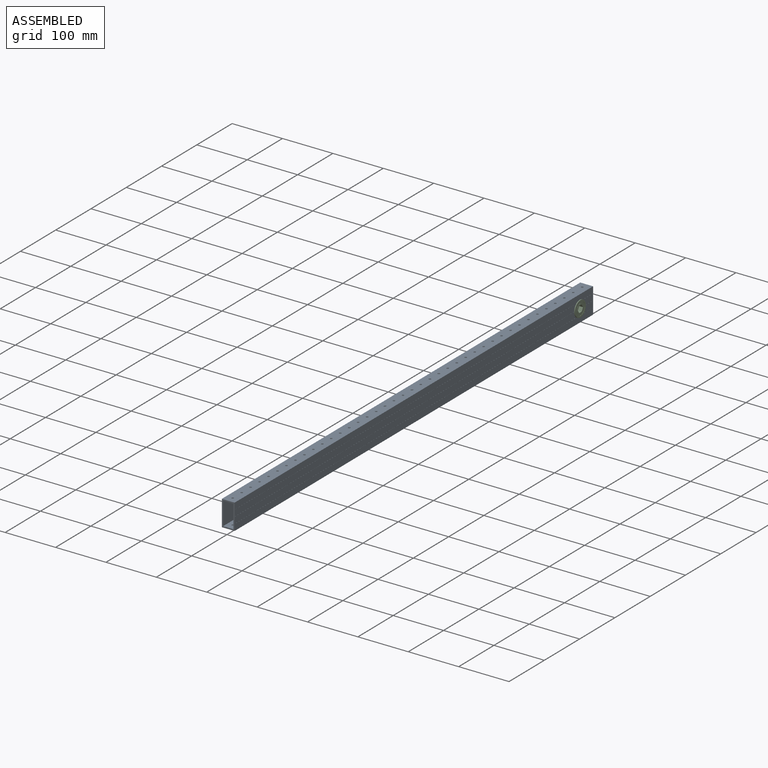
[diagram: assembled view]
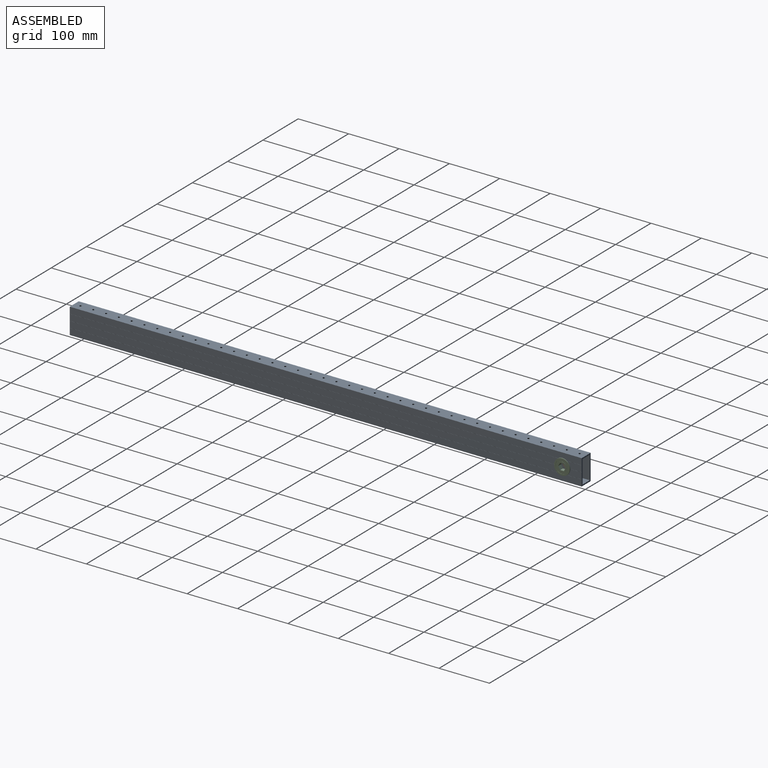
[diagram: assembled view, second angle]
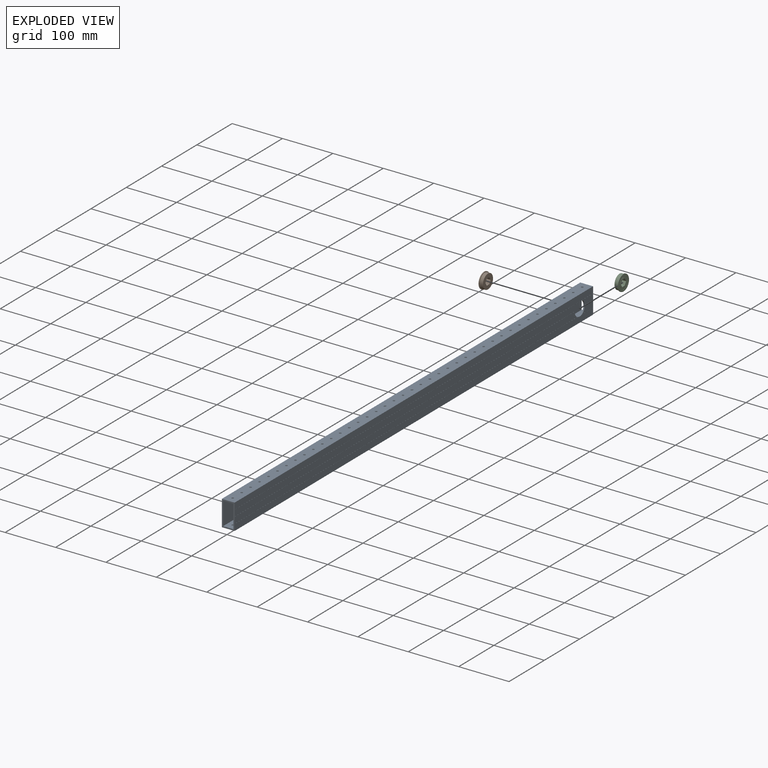
[diagram: exploded view]
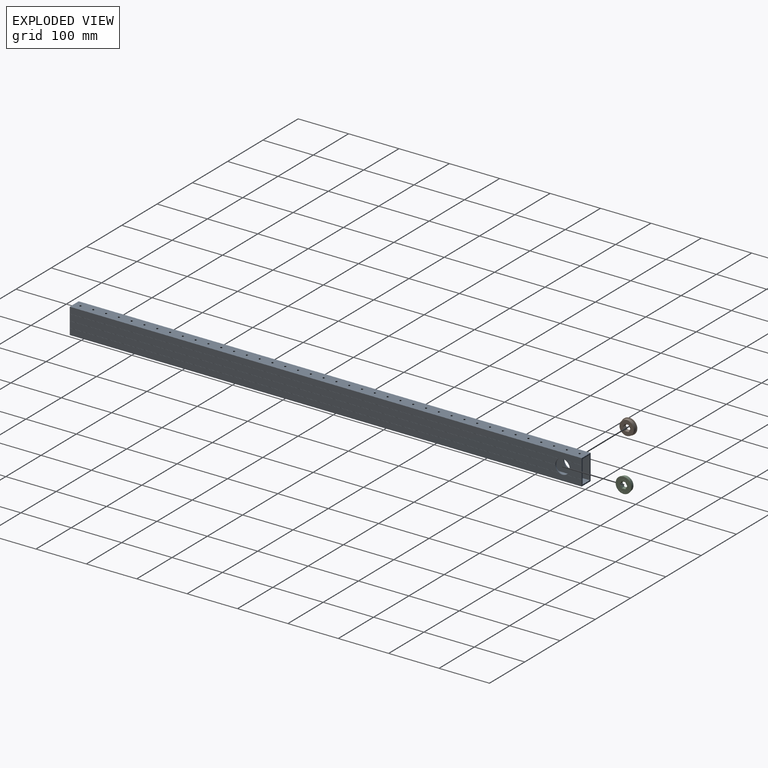
[diagram: exploded view, second angle]
ASSEMBLY  parts=3 mates=2
PART A: 292 faces, bbox 25.4x1016x50.8 mm
  f0: plane 971.21x12.55mm, normal (-1,0,0), area 12118.6mm2, adj f13,f15,f289,f291
  f1: plane 971.21x12.55mm, normal (-1,0,0), area 12118.6mm2, adj f14,f30,f289,f291
  f2: plane 1016x12.62mm, normal (-1,0,0), area 12812.8mm2, adj f20,f31,f40,f125,f289,f291
  f3: plane 971.21x12.55mm, normal (1,0,0), area 12118.6mm2, adj f9,f11,f290,f291
  f4: plane 971.21x12.55mm, normal (1,0,0), area 12118.6mm2, adj f10,f12,f290,f291
  f5: plane 1016x12.62mm, normal (1,0,0), area 12812.8mm2, adj f8,f19,f125,f206,f290,f291
  f6: plane 1016x12.62mm, normal (1,0,0), area 12812.8mm2, adj f17,f27,f36,f125,f290,f291
  f7: plane 1016x12.62mm, normal (-1,0,0), area 12812.8mm2, adj f16,f18,f125,f288,f289,f291
  f8: plane 971.51x0.08mm, normal (0.71,0,-0.71), area 104.7mm2, adj f5,f9,f290,f291
  f9: plane 971.35x0.08mm, normal (0.71,0,0.71), area 104.7mm2, adj f3,f8,f290,f291
  f10: plane 971.35x0.08mm, normal (0.71,0,-0.71), area 104.7mm2, adj f4,f27,f290,f291
  f11: plane 963.61x0.08mm, normal (0.71,0,-0.71), area 103.8mm2, adj f3,f12,f290,f291
  f12: plane 963.61x0.08mm, normal (0.71,0,0.71), area 103.8mm2, adj f4,f11,f290,f291
  f13: plane 963.61x0.08mm, normal (-0.71,0,-0.71), area 103.8mm2, adj f0,f30,f289,f291
  f14: plane 971.35x0.08mm, normal (-0.71,0,-0.71), area 104.7mm2, adj f1,f31,f289,f291
  f15: plane 971.35x0.08mm, normal (-0.71,0,0.71), area 104.7mm2, adj f0,f16,f289,f291
  f16: plane 971.51x0.08mm, normal (-0.71,0,-0.71), area 104.7mm2, adj f7,f15,f289,f291
  f17: plane 1016x12.62mm, normal (0,0,-1), area 12569.1mm2, adj f6,f29,f43,f44,f45,f46,f47,f48
  f18: plane 1016x12.62mm, normal (0,0,1), area 12569.1mm2, adj f7,f26,f82,f83,f84,f85,f86,f87
  f19: plane 1016x12.62mm, normal (0,0,1), area 12569.1mm2, adj f5,f25,f82,f83,f84,f85,f86,f87
  f20: plane 1016x12.62mm, normal (0,0,-1), area 12569.1mm2, adj f2,f28,f43,f44,f45,f46,f47,f48
  f21: plane 1016x45.72mm, normal (-1,0,0), area 45810.2mm2, adj f22,f24,f125,f290,f291
  f22: plane 1016x20.32mm, normal (0,0,-1), area 20106.6mm2, adj f21,f23,f82,f83,f84,f85,f86,f87
  f23: plane 1016x45.72mm, normal (1,0,0), area 45810.2mm2, adj f22,f24,f125,f289,f291
  f24: plane 1016x20.32mm, normal (0,0,1), area 20106.6mm2, adj f21,f23,f43,f44,f45,f46,f47,f48
  f25: plane 10.63x0.08mm, normal (-0.71,0,0.71), area 1.1mm2, adj f19,f26,f82,f291
  f26: plane 10.63x0.08mm, normal (0.71,0,0.71), area 1.1mm2, adj f18,f25,f82,f291
  f27: plane 971.51x0.08mm, normal (0.71,0,0.71), area 104.7mm2, adj f6,f10,f290,f291
  f28: plane 10.63x0.08mm, normal (0.71,0,-0.71), area 1.1mm2, adj f20,f29,f43,f291
  f29: plane 10.63x0.08mm, normal (-0.71,0,-0.71), area 1.1mm2, adj f17,f28,f43,f291
  f30: plane 963.61x0.08mm, normal (-0.71,0,0.71), area 103.8mm2, adj f1,f13,f289,f291
  f31: plane 971.51x0.08mm, normal (-0.71,0,0.71), area 104.7mm2, adj f2,f14,f289,f291
  f32: plane 31.41x12.55mm, normal (1,0,0), area 326.3mm2, adj f34,f37,f125,f290
  f33: plane 31.41x12.55mm, normal (1,0,0), area 326.3mm2, adj f35,f38,f125,f290
  f34: plane 31.55x0.08mm, normal (0.71,0,0.71), area 3.4mm2, adj f32,f125,f206,f290
  f35: plane 31.55x0.08mm, normal (0.71,0,-0.71), area 3.4mm2, adj f33,f36,f125,f290
  f36: plane 31.71x0.08mm, normal (0.71,0,0.71), area 3.4mm2, adj f6,f35,f125,f290
  f37: plane 23.81x0.08mm, normal (0.71,0,-0.71), area 2.6mm2, adj f32,f38,f125,f290
  f38: plane 23.81x0.08mm, normal (0.71,0,0.71), area 2.6mm2, adj f33,f37,f125,f290
  f39: plane 23.81x0.08mm, normal (-0.71,0,0.71), area 2.6mm2, adj f124,f125,f287,f289
  f40: plane 31.71x0.08mm, normal (-0.71,0,0.71), area 3.4mm2, adj f2,f41,f125,f289
  f41: plane 31.55x0.08mm, normal (-0.71,0,-0.71), area 3.4mm2, adj f40,f124,f125,f289
  f42: plane 31.55x0.08mm, normal (-0.71,0,0.71), area 3.4mm2, adj f123,f125,f288,f289
  f43: cylinder r=2.07mm len=4.14mm, axis (0,0,1), area 33mm2, adj f17,f20,f24,f28,f29,f207,f208
  f44: cylinder r=2.07mm len=4.14mm, axis (0,0,1), area 33mm2, adj f17,f20,f24,f207,f208,f209,f210
  f45: cylinder r=2.07mm len=4.14mm, axis (0,0,1), area 33mm2, adj f17,f20,f24,f209,f210,f211,f212
  f46: cylinder r=2.07mm len=4.14mm, axis (0,0,1), area 33mm2, adj f17,f20,f24,f211,f212,f213,f214
  f47: cylinder r=2.07mm len=4.14mm, axis (0,0,1), area 33mm2, adj f17,f20,f24,f213,f214,f215,f216
  f48: cylinder r=2.07mm len=4.14mm, axis (0,0,1), area 33mm2, adj f17,f20,f24,f215,f216,f217,f218
  f49: cylinder r=2.07mm len=4.14mm, axis (0,0,1), area 33mm2, adj f17,f20,f24,f217,f218,f219,f220
  f50: cylinder r=2.07mm len=4.14mm, axis (0,0,1), area 33mm2, adj f17,f20,f24,f219,f220,f221,f222
  f51: cylinder r=2.07mm len=4.14mm, axis (0,0,1), area 33mm2, adj f17,f20,f24,f221,f222,f223,f224
  f52: cylinder r=2.07mm len=4.14mm, axis (0,0,1), area 33mm2, adj f17,f20,f24,f223,f224,f225,f226
  f53: cylinder r=2.07mm len=4.14mm, axis (0,0,1), area 33mm2, adj f17,f20,f24,f225,f226,f227,f228
  f54: cylinder r=2.07mm len=4.14mm, axis (0,0,1), area 33mm2, adj f17,f20,f24,f227,f228,f229,f230
  f55: cylinder r=2.07mm len=4.14mm, axis (0,0,1), area 33mm2, adj f17,f20,f24,f229,f230,f231,f232
  f56: cylinder r=2.07mm len=4.14mm, axis (0,0,1), area 33mm2, adj f17,f20,f24,f231,f232,f233,f234
  f57: cylinder r=2.07mm len=4.14mm, axis (0,0,1), area 33mm2, adj f17,f20,f24,f233,f234,f235,f236
  f58: cylinder r=2.07mm len=4.14mm, axis (0,0,1), area 33mm2, adj f17,f20,f24,f235,f236,f237,f238
  f59: cylinder r=2.07mm len=4.14mm, axis (0,0,1), area 33mm2, adj f17,f20,f24,f237,f238,f239,f240
  f60: cylinder r=2.07mm len=4.14mm, axis (0,0,1), area 33mm2, adj f17,f20,f24,f239,f240,f241,f242
  f61: cylinder r=2.07mm len=4.14mm, axis (0,0,1), area 33mm2, adj f17,f20,f24,f241,f242,f243,f244
  f62: cylinder r=2.07mm len=4.14mm, axis (0,0,1), area 33mm2, adj f17,f20,f24,f243,f244,f245,f246
  f63: cylinder r=2.07mm len=4.14mm, axis (0,0,1), area 33mm2, adj f17,f20,f24,f245,f246,f247,f248
  f64: cylinder r=2.07mm len=4.14mm, axis (0,0,1), area 33mm2, adj f17,f20,f24,f247,f248,f249,f250
  f65: cylinder r=2.07mm len=4.14mm, axis (0,0,1), area 33mm2, adj f17,f20,f24,f249,f250,f251,f252
  f66: cylinder r=2.07mm len=4.14mm, axis (0,0,1), area 33mm2, adj f17,f20,f24,f251,f252,f253,f254
  f67: cylinder r=2.07mm len=4.14mm, axis (0,0,1), area 33mm2, adj f17,f20,f24,f253,f254,f255,f256
  f68: cylinder r=2.07mm len=4.14mm, axis (0,0,1), area 33mm2, adj f17,f20,f24,f255,f256,f257,f258
  f69: cylinder r=2.07mm len=4.14mm, axis (0,0,1), area 33mm2, adj f17,f20,f24,f257,f258,f259,f260
  f70: cylinder r=2.07mm len=4.14mm, axis (0,0,1), area 33mm2, adj f17,f20,f24,f259,f260,f261,f262
  f71: cylinder r=2.07mm len=4.14mm, axis (0,0,1), area 33mm2, adj f17,f20,f24,f261,f262,f263,f264
  f72: cylinder r=2.07mm len=4.14mm, axis (0,0,1), area 33mm2, adj f17,f20,f24,f263,f264,f265,f266
  f73: cylinder r=2.07mm len=4.14mm, axis (0,0,1), area 33mm2, adj f17,f20,f24,f265,f266,f267,f268
  f74: cylinder r=2.07mm len=4.14mm, axis (0,0,1), area 33mm2, adj f17,f20,f24,f267,f268,f269,f270
  f75: cylinder r=2.07mm len=4.14mm, axis (0,0,1), area 33mm2, adj f17,f20,f24,f269,f270,f271,f272
  f76: cylinder r=2.07mm len=4.14mm, axis (0,0,1), area 33mm2, adj f17,f20,f24,f271,f272,f273,f274
  f77: cylinder r=2.07mm len=4.14mm, axis (0,0,1), area 33mm2, adj f17,f20,f24,f273,f274,f275,f276
  f78: cylinder r=2.07mm len=4.14mm, axis (0,0,1), area 33mm2, adj f17,f20,f24,f275,f276,f277,f278
  f79: cylinder r=2.07mm len=4.14mm, axis (0,0,1), area 33mm2, adj f17,f20,f24,f277,f278,f279,f280
  f80: cylinder r=2.07mm len=4.14mm, axis (0,0,1), area 33mm2, adj f17,f20,f24,f279,f280,f281,f282
  f81: cylinder r=2.07mm len=4.14mm, axis (0,0,1), area 33mm2, adj f17,f20,f24,f281,f282,f283,f284
  f82: cylinder r=2.07mm len=4.14mm, axis (0,0,1), area 33mm2, adj f18,f19,f22,f25,f26,f126,f127
  f83: cylinder r=2.07mm len=4.14mm, axis (0,0,1), area 33mm2, adj f18,f19,f22,f126,f127,f128,f129
  f84: cylinder r=2.07mm len=4.14mm, axis (0,0,1), area 33mm2, adj f18,f19,f22,f128,f129,f130,f131
  f85: cylinder r=2.07mm len=4.14mm, axis (0,0,1), area 33mm2, adj f18,f19,f22,f130,f131,f132,f133
  f86: cylinder r=2.07mm len=4.14mm, axis (0,0,1), area 33mm2, adj f18,f19,f22,f132,f133,f134,f135
  f87: cylinder r=2.07mm len=4.14mm, axis (0,0,1), area 33mm2, adj f18,f19,f22,f134,f135,f136,f137
  f88: cylinder r=2.07mm len=4.14mm, axis (0,0,1), area 33mm2, adj f18,f19,f22,f136,f137,f138,f139
  f89: cylinder r=2.07mm len=4.14mm, axis (0,0,1), area 33mm2, adj f18,f19,f22,f138,f139,f140,f141
  f90: cylinder r=2.07mm len=4.14mm, axis (0,0,1), area 33mm2, adj f18,f19,f22,f140,f141,f142,f143
  f91: cylinder r=2.07mm len=4.14mm, axis (0,0,1), area 33mm2, adj f18,f19,f22,f142,f143,f144,f145
  f92: cylinder r=2.07mm len=4.14mm, axis (0,0,1), area 33mm2, adj f18,f19,f22,f144,f145,f146,f147
  f93: cylinder r=2.07mm len=4.14mm, axis (0,0,1), area 33mm2, adj f18,f19,f22,f146,f147,f148,f149
  f94: cylinder r=2.07mm len=4.14mm, axis (0,0,1), area 33mm2, adj f18,f19,f22,f148,f149,f150,f151
  f95: cylinder r=2.07mm len=4.14mm, axis (0,0,1), area 33mm2, adj f18,f19,f22,f150,f151,f152,f153
  f96: cylinder r=2.07mm len=4.14mm, axis (0,0,1), area 33mm2, adj f18,f19,f22,f152,f153,f154,f155
  f97: cylinder r=2.07mm len=4.14mm, axis (0,0,1), area 33mm2, adj f18,f19,f22,f154,f155,f156,f157
  f98: cylinder r=2.07mm len=4.14mm, axis (0,0,1), area 33mm2, adj f18,f19,f22,f156,f157,f158,f159
  f99: cylinder r=2.07mm len=4.14mm, axis (0,0,1), area 33mm2, adj f18,f19,f22,f158,f159,f160,f161
  f100: cylinder r=2.07mm len=4.14mm, axis (0,0,1), area 33mm2, adj f18,f19,f22,f160,f161,f162,f163
  f101: cylinder r=2.07mm len=4.14mm, axis (0,0,1), area 33mm2, adj f18,f19,f22,f162,f163,f164,f165
  f102: cylinder r=2.07mm len=4.14mm, axis (0,0,1), area 33mm2, adj f18,f19,f22,f164,f165,f166,f167
  f103: cylinder r=2.07mm len=4.14mm, axis (0,0,1), area 33mm2, adj f18,f19,f22,f166,f167,f168,f169
  f104: cylinder r=2.07mm len=4.14mm, axis (0,0,1), area 33mm2, adj f18,f19,f22,f168,f169,f170,f171
  f105: cylinder r=2.07mm len=4.14mm, axis (0,0,1), area 33mm2, adj f18,f19,f22,f170,f171,f172,f173
  f106: cylinder r=2.07mm len=4.14mm, axis (0,0,1), area 33mm2, adj f18,f19,f22,f172,f173,f174,f175
  f107: cylinder r=2.07mm len=4.14mm, axis (0,0,1), area 33mm2, adj f18,f19,f22,f174,f175,f176,f177
  f108: cylinder r=2.07mm len=4.14mm, axis (0,0,1), area 33mm2, adj f18,f19,f22,f176,f177,f178,f179
  f109: cylinder r=2.07mm len=4.14mm, axis (0,0,1), area 33mm2, adj f18,f19,f22,f178,f179,f180,f181
  f110: cylinder r=2.07mm len=4.14mm, axis (0,0,1), area 33mm2, adj f18,f19,f22,f180,f181,f182,f183
  f111: cylinder r=2.07mm len=4.14mm, axis (0,0,1), area 33mm2, adj f18,f19,f22,f182,f183,f184,f185
  f112: cylinder r=2.07mm len=4.14mm, axis (0,0,1), area 33mm2, adj f18,f19,f22,f184,f185,f186,f187
  f113: cylinder r=2.07mm len=4.14mm, axis (0,0,1), area 33mm2, adj f18,f19,f22,f186,f187,f188,f189
  f114: cylinder r=2.07mm len=4.14mm, axis (0,0,1), area 33mm2, adj f18,f19,f22,f188,f189,f190,f191
  f115: cylinder r=2.07mm len=4.14mm, axis (0,0,1), area 33mm2, adj f18,f19,f22,f190,f191,f192,f193
  f116: cylinder r=2.07mm len=4.14mm, axis (0,0,1), area 33mm2, adj f18,f19,f22,f192,f193,f194,f195
  f117: cylinder r=2.07mm len=4.14mm, axis (0,0,1), area 33mm2, adj f18,f19,f22,f194,f195,f196,f197
  f118: cylinder r=2.07mm len=4.14mm, axis (0,0,1), area 33mm2, adj f18,f19,f22,f196,f197,f198,f199
  f119: cylinder r=2.07mm len=4.14mm, axis (0,0,1), area 33mm2, adj f18,f19,f22,f198,f199,f200,f201
  f120: cylinder r=2.07mm len=4.14mm, axis (0,0,1), area 33mm2, adj f18,f19,f22,f200,f201,f202,f203
  f121: cylinder r=2.07mm len=4.14mm, axis (0,0,1), area 33mm2, adj f18,f19,f22,f202,f203,f204,f205
  f122: cylinder r=2.07mm len=4.14mm, axis (0,0,1), area 33mm2, adj f17,f20,f24,f283,f284,f285,f286
  f123: plane 31.41x12.55mm, normal (-1,0,0), area 326.3mm2, adj f42,f125,f287,f289
  f124: plane 31.41x12.55mm, normal (-1,0,0), area 326.3mm2, adj f39,f41,f125,f289
  f125: plane 50.8x25.4mm, normal (0,1,0), area 361.2mm2, adj f2,f5,f6,f7,f17,f18,f19,f20
  f126: plane 21.26x0.08mm, normal (-0.71,0,0.71), area 2.3mm2, adj f19,f82,f83,f127
  f127: plane 21.26x0.08mm, normal (0.71,0,0.71), area 2.3mm2, adj f18,f82,f83,f126
  f128: plane 21.26x0.08mm, normal (-0.71,0,0.71), area 2.3mm2, adj f19,f83,f84,f129
  f129: plane 21.26x0.08mm, normal (0.71,0,0.71), area 2.3mm2, adj f18,f83,f84,f128
  f130: plane 21.26x0.08mm, normal (-0.71,0,0.71), area 2.3mm2, adj f19,f84,f85,f131
  f131: plane 21.26x0.08mm, normal (0.71,0,0.71), area 2.3mm2, adj f18,f84,f85,f130
  f132: plane 21.26x0.08mm, normal (-0.71,0,0.71), area 2.3mm2, adj f19,f85,f86,f133
  f133: plane 21.26x0.08mm, normal (0.71,0,0.71), area 2.3mm2, adj f18,f85,f86,f132
  f134: plane 21.26x0.08mm, normal (-0.71,0,0.71), area 2.3mm2, adj f19,f86,f87,f135
  f135: plane 21.26x0.08mm, normal (0.71,0,0.71), area 2.3mm2, adj f18,f86,f87,f134
  f136: plane 21.26x0.08mm, normal (-0.71,0,0.71), area 2.3mm2, adj f19,f87,f88,f137
  f137: plane 21.26x0.08mm, normal (0.71,0,0.71), area 2.3mm2, adj f18,f87,f88,f136
  f138: plane 21.26x0.08mm, normal (-0.71,0,0.71), area 2.3mm2, adj f19,f88,f89,f139
  f139: plane 21.26x0.08mm, normal (0.71,0,0.71), area 2.3mm2, adj f18,f88,f89,f138
  f140: plane 21.26x0.08mm, normal (-0.71,0,0.71), area 2.3mm2, adj f19,f89,f90,f141
  f141: plane 21.26x0.08mm, normal (0.71,0,0.71), area 2.3mm2, adj f18,f89,f90,f140
  f142: plane 21.26x0.08mm, normal (-0.71,0,0.71), area 2.3mm2, adj f19,f90,f91,f143
  f143: plane 21.26x0.08mm, normal (0.71,0,0.71), area 2.3mm2, adj f18,f90,f91,f142
  f144: plane 21.26x0.08mm, normal (-0.71,0,0.71), area 2.3mm2, adj f19,f91,f92,f145
  f145: plane 21.26x0.08mm, normal (0.71,0,0.71), area 2.3mm2, adj f18,f91,f92,f144
  f146: plane 21.26x0.08mm, normal (-0.71,0,0.71), area 2.3mm2, adj f19,f92,f93,f147
  f147: plane 21.26x0.08mm, normal (0.71,0,0.71), area 2.3mm2, adj f18,f92,f93,f146
  f148: plane 21.26x0.08mm, normal (-0.71,0,0.71), area 2.3mm2, adj f19,f93,f94,f149
  f149: plane 21.26x0.08mm, normal (0.71,0,0.71), area 2.3mm2, adj f18,f93,f94,f148
  f150: plane 21.26x0.08mm, normal (-0.71,0,0.71), area 2.3mm2, adj f19,f94,f95,f151
  f151: plane 21.26x0.08mm, normal (0.71,0,0.71), area 2.3mm2, adj f18,f94,f95,f150
  f152: plane 21.26x0.08mm, normal (-0.71,0,0.71), area 2.3mm2, adj f19,f95,f96,f153
  f153: plane 21.26x0.08mm, normal (0.71,0,0.71), area 2.3mm2, adj f18,f95,f96,f152
  f154: plane 21.26x0.08mm, normal (-0.71,0,0.71), area 2.3mm2, adj f19,f96,f97,f155
  f155: plane 21.26x0.08mm, normal (0.71,0,0.71), area 2.3mm2, adj f18,f96,f97,f154
  f156: plane 21.26x0.08mm, normal (-0.71,0,0.71), area 2.3mm2, adj f19,f97,f98,f157
  f157: plane 21.26x0.08mm, normal (0.71,0,0.71), area 2.3mm2, adj f18,f97,f98,f156
  f158: plane 21.26x0.08mm, normal (-0.71,0,0.71), area 2.3mm2, adj f19,f98,f99,f159
  f159: plane 21.26x0.08mm, normal (0.71,0,0.71), area 2.3mm2, adj f18,f98,f99,f158
  f160: plane 21.26x0.08mm, normal (-0.71,0,0.71), area 2.3mm2, adj f19,f99,f100,f161
  f161: plane 21.26x0.08mm, normal (0.71,0,0.71), area 2.3mm2, adj f18,f99,f100,f160
  f162: plane 21.26x0.08mm, normal (-0.71,0,0.71), area 2.3mm2, adj f19,f100,f101,f163
  f163: plane 21.26x0.08mm, normal (0.71,0,0.71), area 2.3mm2, adj f18,f100,f101,f162
  f164: plane 21.26x0.08mm, normal (-0.71,0,0.71), area 2.3mm2, adj f19,f101,f102,f165
  f165: plane 21.26x0.08mm, normal (0.71,0,0.71), area 2.3mm2, adj f18,f101,f102,f164
  f166: plane 21.26x0.08mm, normal (-0.71,0,0.71), area 2.3mm2, adj f19,f102,f103,f167
  f167: plane 21.26x0.08mm, normal (0.71,0,0.71), area 2.3mm2, adj f18,f102,f103,f166
  f168: plane 21.26x0.08mm, normal (-0.71,0,0.71), area 2.3mm2, adj f19,f103,f104,f169
  f169: plane 21.26x0.08mm, normal (0.71,0,0.71), area 2.3mm2, adj f18,f103,f104,f168
  f170: plane 21.26x0.08mm, normal (-0.71,0,0.71), area 2.3mm2, adj f19,f104,f105,f171
  f171: plane 21.26x0.08mm, normal (0.71,0,0.71), area 2.3mm2, adj f18,f104,f105,f170
  f172: plane 21.26x0.08mm, normal (-0.71,0,0.71), area 2.3mm2, adj f19,f105,f106,f173
  f173: plane 21.26x0.08mm, normal (0.71,0,0.71), area 2.3mm2, adj f18,f105,f106,f172
  f174: plane 21.26x0.08mm, normal (-0.71,0,0.71), area 2.3mm2, adj f19,f106,f107,f175
  f175: plane 21.26x0.08mm, normal (0.71,0,0.71), area 2.3mm2, adj f18,f106,f107,f174
  f176: plane 21.26x0.08mm, normal (-0.71,0,0.71), area 2.3mm2, adj f19,f107,f108,f177
  f177: plane 21.26x0.08mm, normal (0.71,0,0.71), area 2.3mm2, adj f18,f107,f108,f176
  f178: plane 21.26x0.08mm, normal (-0.71,0,0.71), area 2.3mm2, adj f19,f108,f109,f179
  f179: plane 21.26x0.08mm, normal (0.71,0,0.71), area 2.3mm2, adj f18,f108,f109,f178
  f180: plane 21.26x0.08mm, normal (-0.71,0,0.71), area 2.3mm2, adj f19,f109,f110,f181
  f181: plane 21.26x0.08mm, normal (0.71,0,0.71), area 2.3mm2, adj f18,f109,f110,f180
  f182: plane 21.26x0.08mm, normal (-0.71,0,0.71), area 2.3mm2, adj f19,f110,f111,f183
  f183: plane 21.26x0.08mm, normal (0.71,0,0.71), area 2.3mm2, adj f18,f110,f111,f182
  f184: plane 21.26x0.08mm, normal (-0.71,0,0.71), area 2.3mm2, adj f19,f111,f112,f185
  f185: plane 21.26x0.08mm, normal (0.71,0,0.71), area 2.3mm2, adj f18,f111,f112,f184
  f186: plane 21.26x0.08mm, normal (-0.71,0,0.71), area 2.3mm2, adj f19,f112,f113,f187
  f187: plane 21.26x0.08mm, normal (0.71,0,0.71), area 2.3mm2, adj f18,f112,f113,f186
  f188: plane 21.26x0.08mm, normal (-0.71,0,0.71), area 2.3mm2, adj f19,f113,f114,f189
  f189: plane 21.26x0.08mm, normal (0.71,0,0.71), area 2.3mm2, adj f18,f113,f114,f188
  f190: plane 21.26x0.08mm, normal (-0.71,0,0.71), area 2.3mm2, adj f19,f114,f115,f191
  f191: plane 21.26x0.08mm, normal (0.71,0,0.71), area 2.3mm2, adj f18,f114,f115,f190
  f192: plane 21.26x0.08mm, normal (-0.71,0,0.71), area 2.3mm2, adj f19,f115,f116,f193
  f193: plane 21.26x0.08mm, normal (0.71,0,0.71), area 2.3mm2, adj f18,f115,f116,f192
  f194: plane 21.26x0.08mm, normal (-0.71,0,0.71), area 2.3mm2, adj f19,f116,f117,f195
  f195: plane 21.26x0.08mm, normal (0.71,0,0.71), area 2.3mm2, adj f18,f116,f117,f194
  f196: plane 21.26x0.08mm, normal (-0.71,0,0.71), area 2.3mm2, adj f19,f117,f118,f197
  f197: plane 21.26x0.08mm, normal (0.71,0,0.71), area 2.3mm2, adj f18,f117,f118,f196
  f198: plane 21.26x0.08mm, normal (-0.71,0,0.71), area 2.3mm2, adj f19,f118,f119,f199
  f199: plane 21.26x0.08mm, normal (0.71,0,0.71), area 2.3mm2, adj f18,f118,f119,f198
  f200: plane 21.26x0.08mm, normal (-0.71,0,0.71), area 2.3mm2, adj f19,f119,f120,f201
  f201: plane 21.26x0.08mm, normal (0.71,0,0.71), area 2.3mm2, adj f18,f119,f120,f200
  f202: plane 21.26x0.08mm, normal (-0.71,0,0.71), area 2.3mm2, adj f19,f120,f121,f203
  f203: plane 21.26x0.08mm, normal (0.71,0,0.71), area 2.3mm2, adj f18,f120,f121,f202
  f204: plane 10.63x0.08mm, normal (0.71,0,0.71), area 1.1mm2, adj f18,f121,f125,f205
  f205: plane 10.63x0.08mm, normal (-0.71,0,0.71), area 1.1mm2, adj f19,f121,f125,f204
  f206: plane 31.71x0.08mm, normal (0.71,0,-0.71), area 3.4mm2, adj f5,f34,f125,f290
  f207: plane 21.26x0.08mm, normal (0.71,0,-0.71), area 2.3mm2, adj f20,f43,f44,f208
  f208: plane 21.26x0.08mm, normal (-0.71,0,-0.71), area 2.3mm2, adj f17,f43,f44,f207
  f209: plane 21.26x0.08mm, normal (0.71,0,-0.71), area 2.3mm2, adj f20,f44,f45,f210
  f210: plane 21.26x0.08mm, normal (-0.71,0,-0.71), area 2.3mm2, adj f17,f44,f45,f209
  f211: plane 21.26x0.08mm, normal (0.71,0,-0.71), area 2.3mm2, adj f20,f45,f46,f212
  f212: plane 21.26x0.08mm, normal (-0.71,0,-0.71), area 2.3mm2, adj f17,f45,f46,f211
  f213: plane 21.26x0.08mm, normal (0.71,0,-0.71), area 2.3mm2, adj f20,f46,f47,f214
  f214: plane 21.26x0.08mm, normal (-0.71,0,-0.71), area 2.3mm2, adj f17,f46,f47,f213
  f215: plane 21.26x0.08mm, normal (0.71,0,-0.71), area 2.3mm2, adj f20,f47,f48,f216
  f216: plane 21.26x0.08mm, normal (-0.71,0,-0.71), area 2.3mm2, adj f17,f47,f48,f215
  f217: plane 21.26x0.08mm, normal (0.71,0,-0.71), area 2.3mm2, adj f20,f48,f49,f218
  f218: plane 21.26x0.08mm, normal (-0.71,0,-0.71), area 2.3mm2, adj f17,f48,f49,f217
  f219: plane 21.26x0.08mm, normal (0.71,0,-0.71), area 2.3mm2, adj f20,f49,f50,f220
  f220: plane 21.26x0.08mm, normal (-0.71,0,-0.71), area 2.3mm2, adj f17,f49,f50,f219
  f221: plane 21.26x0.08mm, normal (0.71,0,-0.71), area 2.3mm2, adj f20,f50,f51,f222
  f222: plane 21.26x0.08mm, normal (-0.71,0,-0.71), area 2.3mm2, adj f17,f50,f51,f221
  f223: plane 21.26x0.08mm, normal (0.71,0,-0.71), area 2.3mm2, adj f20,f51,f52,f224
  f224: plane 21.26x0.08mm, normal (-0.71,0,-0.71), area 2.3mm2, adj f17,f51,f52,f223
  f225: plane 21.26x0.08mm, normal (0.71,0,-0.71), area 2.3mm2, adj f20,f52,f53,f226
  f226: plane 21.26x0.08mm, normal (-0.71,0,-0.71), area 2.3mm2, adj f17,f52,f53,f225
  f227: plane 21.26x0.08mm, normal (0.71,0,-0.71), area 2.3mm2, adj f20,f53,f54,f228
  f228: plane 21.26x0.08mm, normal (-0.71,0,-0.71), area 2.3mm2, adj f17,f53,f54,f227
  f229: plane 21.26x0.08mm, normal (0.71,0,-0.71), area 2.3mm2, adj f20,f54,f55,f230
  f230: plane 21.26x0.08mm, normal (-0.71,0,-0.71), area 2.3mm2, adj f17,f54,f55,f229
  f231: plane 21.26x0.08mm, normal (0.71,0,-0.71), area 2.3mm2, adj f20,f55,f56,f232
  f232: plane 21.26x0.08mm, normal (-0.71,0,-0.71), area 2.3mm2, adj f17,f55,f56,f231
  f233: plane 21.26x0.08mm, normal (0.71,0,-0.71), area 2.3mm2, adj f20,f56,f57,f234
  f234: plane 21.26x0.08mm, normal (-0.71,0,-0.71), area 2.3mm2, adj f17,f56,f57,f233
  f235: plane 21.26x0.08mm, normal (0.71,0,-0.71), area 2.3mm2, adj f20,f57,f58,f236
  f236: plane 21.26x0.08mm, normal (-0.71,0,-0.71), area 2.3mm2, adj f17,f57,f58,f235
  f237: plane 21.26x0.08mm, normal (0.71,0,-0.71), area 2.3mm2, adj f20,f58,f59,f238
  f238: plane 21.26x0.08mm, normal (-0.71,0,-0.71), area 2.3mm2, adj f17,f58,f59,f237
  f239: plane 21.26x0.08mm, normal (0.71,0,-0.71), area 2.3mm2, adj f20,f59,f60,f240
  f240: plane 21.26x0.08mm, normal (-0.71,0,-0.71), area 2.3mm2, adj f17,f59,f60,f239
  f241: plane 21.26x0.08mm, normal (0.71,0,-0.71), area 2.3mm2, adj f20,f60,f61,f242
  f242: plane 21.26x0.08mm, normal (-0.71,0,-0.71), area 2.3mm2, adj f17,f60,f61,f241
  f243: plane 21.26x0.08mm, normal (0.71,0,-0.71), area 2.3mm2, adj f20,f61,f62,f244
  f244: plane 21.26x0.08mm, normal (-0.71,0,-0.71), area 2.3mm2, adj f17,f61,f62,f243
  f245: plane 21.26x0.08mm, normal (0.71,0,-0.71), area 2.3mm2, adj f20,f62,f63,f246
  f246: plane 21.26x0.08mm, normal (-0.71,0,-0.71), area 2.3mm2, adj f17,f62,f63,f245
  f247: plane 21.26x0.08mm, normal (0.71,0,-0.71), area 2.3mm2, adj f20,f63,f64,f248
  f248: plane 21.26x0.08mm, normal (-0.71,0,-0.71), area 2.3mm2, adj f17,f63,f64,f247
  f249: plane 21.26x0.08mm, normal (0.71,0,-0.71), area 2.3mm2, adj f20,f64,f65,f250
  f250: plane 21.26x0.08mm, normal (-0.71,0,-0.71), area 2.3mm2, adj f17,f64,f65,f249
  f251: plane 21.26x0.08mm, normal (0.71,0,-0.71), area 2.3mm2, adj f20,f65,f66,f252
  f252: plane 21.26x0.08mm, normal (-0.71,0,-0.71), area 2.3mm2, adj f17,f65,f66,f251
  f253: plane 21.26x0.08mm, normal (0.71,0,-0.71), area 2.3mm2, adj f20,f66,f67,f254
  f254: plane 21.26x0.08mm, normal (-0.71,0,-0.71), area 2.3mm2, adj f17,f66,f67,f253
  f255: plane 21.26x0.08mm, normal (0.71,0,-0.71), area 2.3mm2, adj f20,f67,f68,f256
  f256: plane 21.26x0.08mm, normal (-0.71,0,-0.71), area 2.3mm2, adj f17,f67,f68,f255
  f257: plane 21.26x0.08mm, normal (0.71,0,-0.71), area 2.3mm2, adj f20,f68,f69,f258
  f258: plane 21.26x0.08mm, normal (-0.71,0,-0.71), area 2.3mm2, adj f17,f68,f69,f257
  f259: plane 21.26x0.08mm, normal (0.71,0,-0.71), area 2.3mm2, adj f20,f69,f70,f260
  f260: plane 21.26x0.08mm, normal (-0.71,0,-0.71), area 2.3mm2, adj f17,f69,f70,f259
  f261: plane 21.26x0.08mm, normal (0.71,0,-0.71), area 2.3mm2, adj f20,f70,f71,f262
  f262: plane 21.26x0.08mm, normal (-0.71,0,-0.71), area 2.3mm2, adj f17,f70,f71,f261
  f263: plane 21.26x0.08mm, normal (0.71,0,-0.71), area 2.3mm2, adj f20,f71,f72,f264
  f264: plane 21.26x0.08mm, normal (-0.71,0,-0.71), area 2.3mm2, adj f17,f71,f72,f263
  f265: plane 21.26x0.08mm, normal (0.71,0,-0.71), area 2.3mm2, adj f20,f72,f73,f266
  f266: plane 21.26x0.08mm, normal (-0.71,0,-0.71), area 2.3mm2, adj f17,f72,f73,f265
  f267: plane 21.26x0.08mm, normal (0.71,0,-0.71), area 2.3mm2, adj f20,f73,f74,f268
  f268: plane 21.26x0.08mm, normal (-0.71,0,-0.71), area 2.3mm2, adj f17,f73,f74,f267
  f269: plane 21.26x0.08mm, normal (0.71,0,-0.71), area 2.3mm2, adj f20,f74,f75,f270
  f270: plane 21.26x0.08mm, normal (-0.71,0,-0.71), area 2.3mm2, adj f17,f74,f75,f269
  f271: plane 21.26x0.08mm, normal (0.71,0,-0.71), area 2.3mm2, adj f20,f75,f76,f272
  f272: plane 21.26x0.08mm, normal (-0.71,0,-0.71), area 2.3mm2, adj f17,f75,f76,f271
  f273: plane 21.26x0.08mm, normal (0.71,0,-0.71), area 2.3mm2, adj f20,f76,f77,f274
  f274: plane 21.26x0.08mm, normal (-0.71,0,-0.71), area 2.3mm2, adj f17,f76,f77,f273
  f275: plane 21.26x0.08mm, normal (0.71,0,-0.71), area 2.3mm2, adj f20,f77,f78,f276
  f276: plane 21.26x0.08mm, normal (-0.71,0,-0.71), area 2.3mm2, adj f17,f77,f78,f275
  f277: plane 21.26x0.08mm, normal (0.71,0,-0.71), area 2.3mm2, adj f20,f78,f79,f278
  f278: plane 21.26x0.08mm, normal (-0.71,0,-0.71), area 2.3mm2, adj f17,f78,f79,f277
  f279: plane 21.26x0.08mm, normal (0.71,0,-0.71), area 2.3mm2, adj f20,f79,f80,f280
  f280: plane 21.26x0.08mm, normal (-0.71,0,-0.71), area 2.3mm2, adj f17,f79,f80,f279
  f281: plane 21.26x0.08mm, normal (0.71,0,-0.71), area 2.3mm2, adj f20,f80,f81,f282
  f282: plane 21.26x0.08mm, normal (-0.71,0,-0.71), area 2.3mm2, adj f17,f80,f81,f281
  f283: plane 21.26x0.08mm, normal (0.71,0,-0.71), area 2.3mm2, adj f20,f81,f122,f284
  f284: plane 21.26x0.08mm, normal (-0.71,0,-0.71), area 2.3mm2, adj f17,f81,f122,f283
  f285: plane 10.63x0.08mm, normal (-0.71,0,-0.71), area 1.1mm2, adj f17,f122,f125,f286
  f286: plane 10.63x0.08mm, normal (0.71,0,-0.71), area 1.1mm2, adj f20,f122,f125,f285
  f287: plane 23.81x0.08mm, normal (-0.71,0,-0.71), area 2.6mm2, adj f39,f123,f125,f289
  f288: plane 31.71x0.08mm, normal (-0.71,0,-0.71), area 3.4mm2, adj f7,f42,f125,f289
  f289: cylinder r=14.29mm len=28.58mm, axis (1,0,0), area 228mm2, adj f0,f1,f2,f7,f13,f14,f15,f16
  f290: cylinder r=14.29mm len=28.58mm, axis (1,0,0), area 228mm2, adj f3,f4,f5,f6,f8,f9,f10,f11
  f291: plane 50.8x25.4mm, normal (0,-1,0), area 361.2mm2, adj f0,f1,f2,f3,f4,f5,f6,f7
PART B: 15 faces, bbox 31.1x31.1x7.9 mm
  f0: cylinder r=12.7mm len=25.4mm, axis (0,0,1), area 30.4mm2, adj f7,f8
  f1: cylinder r=15.56mm len=31.12mm, axis (0,0,1), area 155.2mm2, adj f6,f7
  f2: cylinder r=14.27mm len=28.55mm, axis (0,0,1), area 569.5mm2, adj f5,f6
  f3: cylinder r=9.53mm len=19.05mm, axis (0,0,1), area 22.8mm2, adj f4,f8
  f4: plane 19.05x19.05mm, normal (0,0,1), area 144.9mm2, adj f3,f9,f10,f11,f12,f13,f14
  f5: plane 28.55x28.55mm, normal (0,0,-1), area 500mm2, adj f2,f9,f10,f11,f12,f13,f14
  f6: plane 31.12x31.12mm, normal (0,0,-1), area 120.2mm2, adj f1,f2
  f7: plane 31.12x31.12mm, normal (0,0,1), area 253.7mm2, adj f0,f1
  f8: plane 25.4x25.4mm, normal (0,0,1), area 221.7mm2, adj f0,f3
  f9: plane 7.94x6.36mm, normal (-0.87,-0.5,0), area 58.3mm2, adj f4,f5,f10,f14
  f10: plane 7.94x6.36mm, normal (-0.87,0.5,0), area 58.3mm2, adj f4,f5,f9,f11
  f11: plane 7.94x7.34mm, normal (0,1,0), area 58.3mm2, adj f4,f5,f10,f12
  f12: plane 7.94x6.36mm, normal (0.87,0.5,0), area 58.3mm2, adj f4,f5,f11,f13
  f13: plane 7.94x6.36mm, normal (0.87,-0.5,0), area 58.3mm2, adj f4,f5,f12,f14
  f14: plane 7.94x7.34mm, normal (0,-1,0), area 58.3mm2, adj f4,f5,f9,f13
PART C: same geometry as B
PLACE A t=(8.44,58.44,-9.42)mm fixed
PLACE B rot(axis=(-0.24,-0.94,0.24),93.6deg) t=(2.09,769.64,-9.42)mm
PLACE C rot(axis=(-0.24,0.94,-0.24),93.6deg) t=(14.79,769.64,-9.42)mm
MATE revolute C.f0 <-> A.f289  axis (-1,0,0) through (21.14,769.64,-9.42)mm
MATE fastened C.f0 <-> B.f0  axis (-1,0,0) through (21.14,769.64,-9.42)mm
